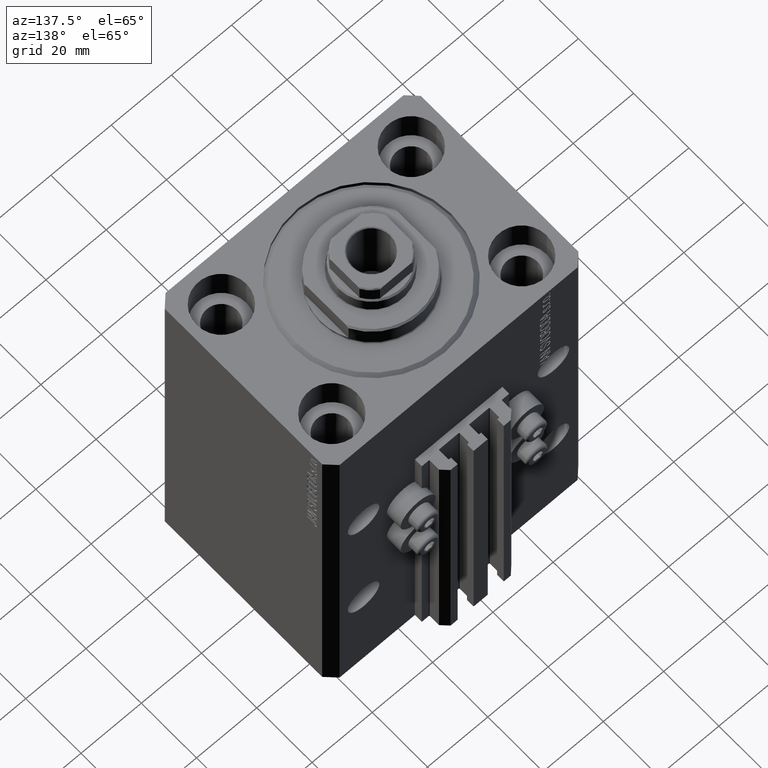
[diagram: clean part render]
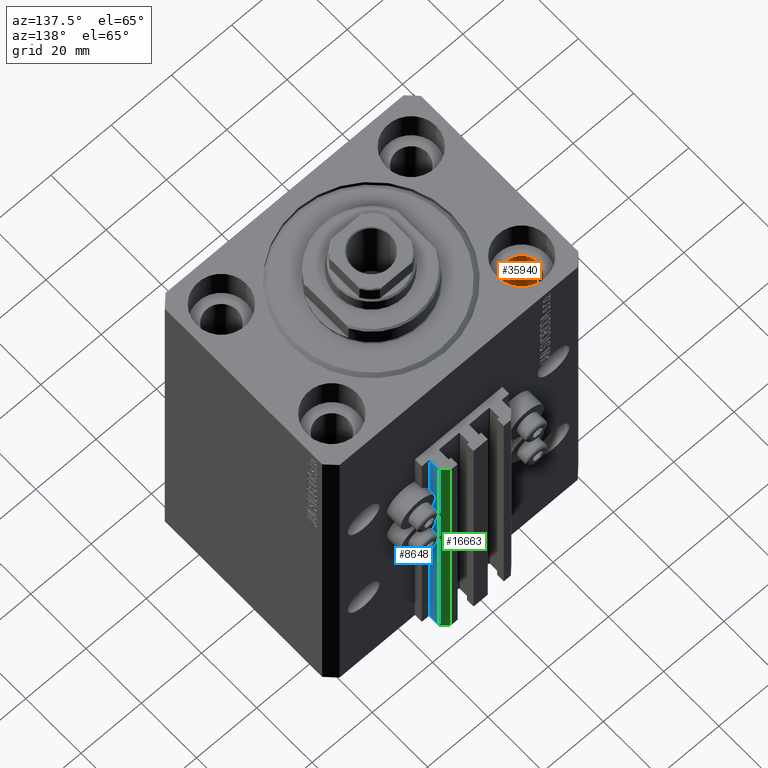
[diagram: same view with three faces highlighted in distinct colors, each labeled with its STEP entity id]
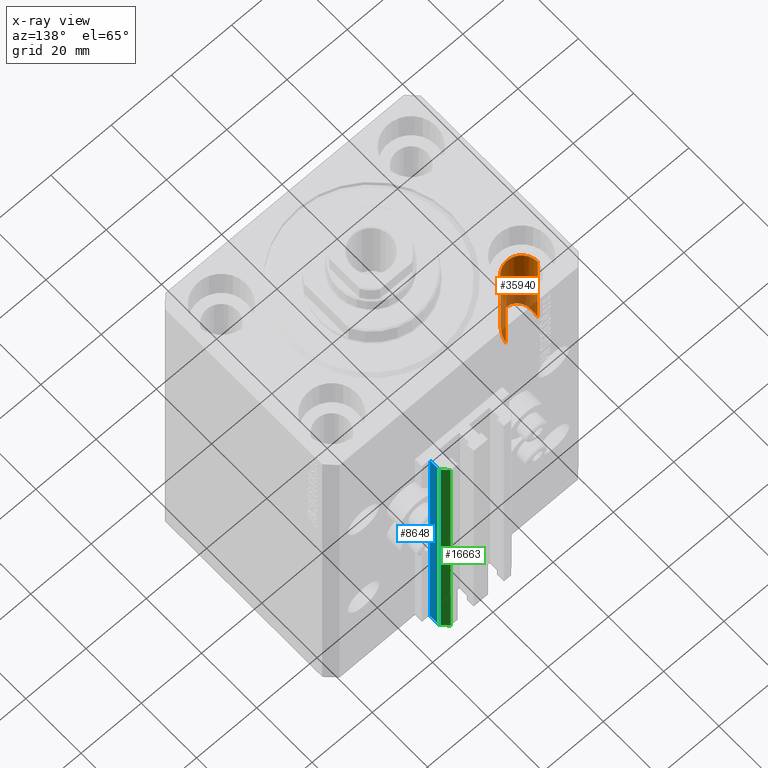
[diagram: x-ray of the same camera — body ghosted, the three highlighted faces saturated]
A machine part, auxiliary view with three faces highlighted in distinct colors.
The next image is the same camera in x-ray (body ghosted, the three faces saturated) — at least one of them is partly hidden behind the body in this view.
Their STEP definitions:

[orange] entity #35940 — the highlighted cylindrical surface (edge-blend (fillet) strip) has radius 5.25 mm, axis along (0, 0, 1).
#472 = AXIS2_PLACEMENT_3D ( 'NONE', #42783, #35950, #13121 ) ;
#1238 = DIRECTION ( 'NONE',  ( -0.000000000000000000, -0.000000000000000000, 1.000000000000000000 ) ) ;
#1304 = CARTESIAN_POINT ( 'NONE',  ( -26.24999999999999645, 9.500000000000012434, -32.50000000000001421 ) ) ;
#3258 = EDGE_CURVE ( 'NONE', #36794, #46211, #22194, .T. ) ;
#3498 = CARTESIAN_POINT ( 'NONE',  ( -36.75000000000000000, 20.00000000000000000, -11.00000000000000000 ) ) ;
#3780 = CARTESIAN_POINT ( 'NONE',  ( -26.25000000000000000, 20.00000000000000000, -11.00000000000000000 ) ) ;
#4650 = CARTESIAN_POINT ( 'NONE',  ( -31.50000000000000000, 20.00000000000000000, -123.0000000000000000 ) ) ;
#5358 = CYLINDRICAL_SURFACE ( 'NONE', #12222, 5.250000000000000888 ) ;
#6177 = EDGE_CURVE ( 'NONE', #26959, #36794, #36479, .T. ) ;
#7442 = LINE ( 'NONE', #30080, #21805 ) ;
#7994 = CARTESIAN_POINT ( 'NONE',  ( -26.24999999999999645, 20.00000000000000355, -43.00000000000000711 ) ) ;
#9065 = CARTESIAN_POINT ( 'NONE',  ( -36.74999999999999289, 20.00000000000000355, -43.00000000000000711 ) ) ;
#9600 = VERTEX_POINT ( 'NONE', #7994 ) ;
#12187 = FACE_OUTER_BOUND ( 'NONE', #32956, .T. ) ;
#12222 = AXIS2_PLACEMENT_3D ( 'NONE', #4650, #1238, #34801 ) ;
#13121 = DIRECTION ( 'NONE',  ( 1.000000000000000000, 0.000000000000000000, 0.000000000000000000 ) ) ;
#17583 = ORIENTED_EDGE ( 'NONE', *, *, #17938, .F. ) ;
#17680 =( BOUNDED_CURVE ( )  B_SPLINE_CURVE ( 3, ( #31229, #1304, #34628, #9065 ),
 .UNSPECIFIED., .F., .F. ) 
 B_SPLINE_CURVE_WITH_KNOTS ( ( 4, 4 ),
 ( 4.712388980384689674, 7.853981633974482790 ),
 .UNSPECIFIED. ) 
 CURVE ( )  GEOMETRIC_REPRESENTATION_ITEM ( )  RATIONAL_B_SPLINE_CURVE ( ( 1.000000000000000000, 0.3333333333333333703, 0.3333333333333333703, 1.000000000000000000 ) ) 
 REPRESENTATION_ITEM ( '' )  );
#17938 = EDGE_CURVE ( 'NONE', #9600, #46211, #7442, .T. ) ;
#18475 = DIRECTION ( 'NONE',  ( -0.000000000000000000, -0.000000000000000000, 1.000000000000000000 ) ) ;
#21805 = VECTOR ( 'NONE', #33228, 1000.000000000000000 ) ;
#22194 = CIRCLE ( 'NONE', #472, 5.250000000000000888 ) ;
#24186 = CARTESIAN_POINT ( 'NONE',  ( -36.74999999999999289, 20.00000000000000355, -43.00000000000000711 ) ) ;
#26959 = VERTEX_POINT ( 'NONE', #24186 ) ;
#30080 = CARTESIAN_POINT ( 'NONE',  ( -26.25000000000000000, 20.00000000000000000, -123.0000000000000000 ) ) ;
#30255 = ORIENTED_EDGE ( 'NONE', *, *, #6177, .T. ) ;
#30467 = ORIENTED_EDGE ( 'NONE', *, *, #3258, .T. ) ;
#31229 = CARTESIAN_POINT ( 'NONE',  ( -26.24999999999999645, 20.00000000000000355, -43.00000000000000711 ) ) ;
#32403 = VECTOR ( 'NONE', #18475, 1000.000000000000000 ) ;
#32956 = EDGE_LOOP ( 'NONE', ( #47140, #30255, #30467, #17583 ) ) ;
#33069 = CARTESIAN_POINT ( 'NONE',  ( -36.75000000000000000, 20.00000000000000000, -123.0000000000000000 ) ) ;
#33228 = DIRECTION ( 'NONE',  ( -0.000000000000000000, -0.000000000000000000, 1.000000000000000000 ) ) ;
#34628 = CARTESIAN_POINT ( 'NONE',  ( -36.74999999999999289, 9.500000000000012434, -32.50000000000001421 ) ) ;
#34801 = DIRECTION ( 'NONE',  ( 1.000000000000000000, 0.000000000000000000, 0.000000000000000000 ) ) ;
#35940 = ADVANCED_FACE ( 'NONE', ( #12187 ), #5358, .F. ) ;
#35950 = DIRECTION ( 'NONE',  ( 0.000000000000000000, 0.000000000000000000, 1.000000000000000000 ) ) ;
#36479 = LINE ( 'NONE', #33069, #32403 ) ;
#36794 = VERTEX_POINT ( 'NONE', #3498 ) ;
#39654 = EDGE_CURVE ( 'NONE', #9600, #26959, #17680, .T. ) ;
#42783 = CARTESIAN_POINT ( 'NONE',  ( -31.50000000000000000, 20.00000000000000000, -11.00000000000000000 ) ) ;
#46211 = VERTEX_POINT ( 'NONE', #3780 ) ;
#47140 = ORIENTED_EDGE ( 'NONE', *, *, #39654, .T. ) ;

[blue] entity #8648 — the highlighted planar face has unit normal (1, 0, 0).
#431 = VERTEX_POINT ( 'NONE', #9980 ) ;
#3174 = EDGE_CURVE ( 'NONE', #30362, #431, #19934, .T. ) ;
#7551 = PLANE ( 'NONE',  #9164 ) ;
#7660 = CARTESIAN_POINT ( 'NONE',  ( 11.99999999999999822, 34.20000000000002416, -123.0000000000000000 ) ) ;
#8648 = ADVANCED_FACE ( 'NONE', ( #33588 ), #7551, .T. ) ;
#9164 = AXIS2_PLACEMENT_3D ( 'NONE', #37711, #44529, #11451 ) ;
#9588 = VECTOR ( 'NONE', #9675, 1000.000000000000000 ) ;
#9675 = DIRECTION ( 'NONE',  ( 0.000000000000000000, 0.000000000000000000, 1.000000000000000000 ) ) ;
#9980 = CARTESIAN_POINT ( 'NONE',  ( 12.00000000000000000, 37.50000000000002132, -123.0000000000000000 ) ) ;
#11060 = CARTESIAN_POINT ( 'NONE',  ( 12.00000000000000178, 34.20000000000002416, -33.00000000000000000 ) ) ;
#11451 = DIRECTION ( 'NONE',  ( -5.256737805990329967E-16, 1.000000000000000000, 0.000000000000000000 ) ) ;
#13659 = VECTOR ( 'NONE', #41594, 1000.000000000000000 ) ;
#14904 = DIRECTION ( 'NONE',  ( 0.000000000000000000, 0.000000000000000000, 1.000000000000000000 ) ) ;
#15039 = CARTESIAN_POINT ( 'NONE',  ( 11.99999999999999822, 34.20000000000002416, -33.00000000000000000 ) ) ;
#15625 = VECTOR ( 'NONE', #14904, 1000.000000000000000 ) ;
#16633 = VECTOR ( 'NONE', #25658, 1000.000000000000000 ) ;
#19934 = LINE ( 'NONE', #31360, #13659 ) ;
#20813 = ORIENTED_EDGE ( 'NONE', *, *, #44238, .T. ) ;
#20856 = CARTESIAN_POINT ( 'NONE',  ( 12.00000000000000000, 37.50000000000002132, -33.00000000000000000 ) ) ;
#21514 = LINE ( 'NONE', #11060, #16633 ) ;
#22055 = EDGE_CURVE ( 'NONE', #30362, #30722, #46898, .T. ) ;
#24098 = EDGE_CURVE ( 'NONE', #30722, #35795, #21514, .T. ) ;
#25658 = DIRECTION ( 'NONE',  ( -5.256737805990328981E-16, 1.000000000000000000, 0.000000000000000000 ) ) ;
#28251 = ORIENTED_EDGE ( 'NONE', *, *, #3174, .T. ) ;
#29935 = CARTESIAN_POINT ( 'NONE',  ( 11.99999999999999822, 34.20000000000002416, -123.0000000000000000 ) ) ;
#30362 = VERTEX_POINT ( 'NONE', #29935 ) ;
#30722 = VERTEX_POINT ( 'NONE', #15039 ) ;
#31360 = CARTESIAN_POINT ( 'NONE',  ( 12.00000000000000178, 34.20000000000002416, -123.0000000000000000 ) ) ;
#31609 = EDGE_LOOP ( 'NONE', ( #43328, #33140, #28251, #20813 ) ) ;
#33123 = CARTESIAN_POINT ( 'NONE',  ( 12.00000000000000000, 37.50000000000002132, -123.0000000000000000 ) ) ;
#33140 = ORIENTED_EDGE ( 'NONE', *, *, #22055, .F. ) ;
#33588 = FACE_OUTER_BOUND ( 'NONE', #31609, .T. ) ;
#35795 = VERTEX_POINT ( 'NONE', #20856 ) ;
#37711 = CARTESIAN_POINT ( 'NONE',  ( 12.00000000000000178, 34.20000000000002416, -123.0000000000000000 ) ) ;
#41594 = DIRECTION ( 'NONE',  ( -5.256737805990328981E-16, 1.000000000000000000, 0.000000000000000000 ) ) ;
#43328 = ORIENTED_EDGE ( 'NONE', *, *, #24098, .F. ) ;
#44238 = EDGE_CURVE ( 'NONE', #431, #35795, #47492, .T. ) ;
#44529 = DIRECTION ( 'NONE',  ( 1.000000000000000000, 5.256737805990329967E-16, -0.000000000000000000 ) ) ;
#46898 = LINE ( 'NONE', #7660, #9588 ) ;
#47492 = LINE ( 'NONE', #33123, #15625 ) ;

[green] entity #16663 — the highlighted planar face has unit normal (0.7071, 0.7071, 0).
#431 = VERTEX_POINT ( 'NONE', #9980 ) ;
#1036 = ORIENTED_EDGE ( 'NONE', *, *, #44746, .F. ) ;
#2762 = LINE ( 'NONE', #32440, #45014 ) ;
#2962 = LINE ( 'NONE', #11222, #19900 ) ;
#5954 = ORIENTED_EDGE ( 'NONE', *, *, #14623, .T. ) ;
#6495 = CARTESIAN_POINT ( 'NONE',  ( 9.999999999999998224, 39.50000000000002132, -33.00000000000000000 ) ) ;
#8988 = EDGE_LOOP ( 'NONE', ( #1036, #20238, #11700, #5954 ) ) ;
#9980 = CARTESIAN_POINT ( 'NONE',  ( 12.00000000000000000, 37.50000000000002132, -123.0000000000000000 ) ) ;
#11222 = CARTESIAN_POINT ( 'NONE',  ( 12.00000000000000000, 37.50000000000002132, -123.0000000000000000 ) ) ;
#11700 = ORIENTED_EDGE ( 'NONE', *, *, #29845, .T. ) ;
#12736 = FACE_OUTER_BOUND ( 'NONE', #8988, .T. ) ;
#14612 = CARTESIAN_POINT ( 'NONE',  ( 12.00000000000000000, 37.50000000000002132, -33.00000000000000000 ) ) ;
#14623 = EDGE_CURVE ( 'NONE', #28620, #33690, #2762, .T. ) ;
#14904 = DIRECTION ( 'NONE',  ( 0.000000000000000000, 0.000000000000000000, 1.000000000000000000 ) ) ;
#15625 = VECTOR ( 'NONE', #14904, 1000.000000000000000 ) ;
#16651 = CARTESIAN_POINT ( 'NONE',  ( 9.999999999999998224, 39.50000000000002132, -123.0000000000000000 ) ) ;
#16663 = ADVANCED_FACE ( 'NONE', ( #12736 ), #27571, .T. ) ;
#18082 = DIRECTION ( 'NONE',  ( 0.000000000000000000, 0.000000000000000000, 1.000000000000000000 ) ) ;
#18518 = DIRECTION ( 'NONE',  ( -0.7071067811865474617, 0.7071067811865474617, 0.000000000000000000 ) ) ;
#19900 = VECTOR ( 'NONE', #18518, 1000.000000000000114 ) ;
#20238 = ORIENTED_EDGE ( 'NONE', *, *, #44238, .F. ) ;
#20856 = CARTESIAN_POINT ( 'NONE',  ( 12.00000000000000000, 37.50000000000002132, -33.00000000000000000 ) ) ;
#21897 = LINE ( 'NONE', #14612, #43597 ) ;
#23922 = DIRECTION ( 'NONE',  ( -0.7071067811865474617, 0.7071067811865474617, 0.000000000000000000 ) ) ;
#27571 = PLANE ( 'NONE',  #38864 ) ;
#28620 = VERTEX_POINT ( 'NONE', #16651 ) ;
#29443 = DIRECTION ( 'NONE',  ( -0.7071067811865474617, 0.7071067811865474617, 0.000000000000000000 ) ) ;
#29845 = EDGE_CURVE ( 'NONE', #431, #28620, #2962, .T. ) ;
#32162 = CARTESIAN_POINT ( 'NONE',  ( 12.00000000000000000, 37.50000000000002132, -123.0000000000000000 ) ) ;
#32440 = CARTESIAN_POINT ( 'NONE',  ( 9.999999999999998224, 39.50000000000002132, -123.0000000000000000 ) ) ;
#33123 = CARTESIAN_POINT ( 'NONE',  ( 12.00000000000000000, 37.50000000000002132, -123.0000000000000000 ) ) ;
#33690 = VERTEX_POINT ( 'NONE', #6495 ) ;
#35795 = VERTEX_POINT ( 'NONE', #20856 ) ;
#38864 = AXIS2_PLACEMENT_3D ( 'NONE', #32162, #42407, #23922 ) ;
#42407 = DIRECTION ( 'NONE',  ( 0.7071067811865475727, 0.7071067811865475727, -0.000000000000000000 ) ) ;
#43597 = VECTOR ( 'NONE', #29443, 1000.000000000000114 ) ;
#44238 = EDGE_CURVE ( 'NONE', #431, #35795, #47492, .T. ) ;
#44746 = EDGE_CURVE ( 'NONE', #35795, #33690, #21897, .T. ) ;
#45014 = VECTOR ( 'NONE', #18082, 1000.000000000000000 ) ;
#47492 = LINE ( 'NONE', #33123, #15625 ) ;